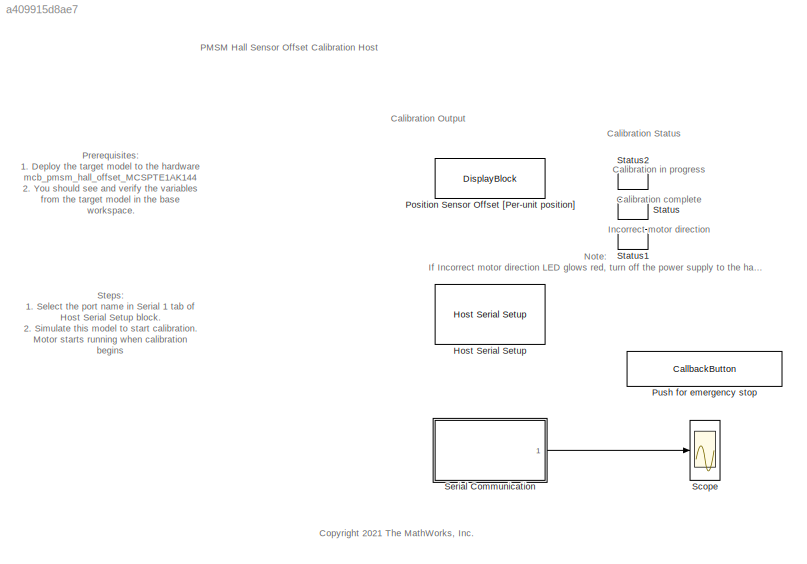
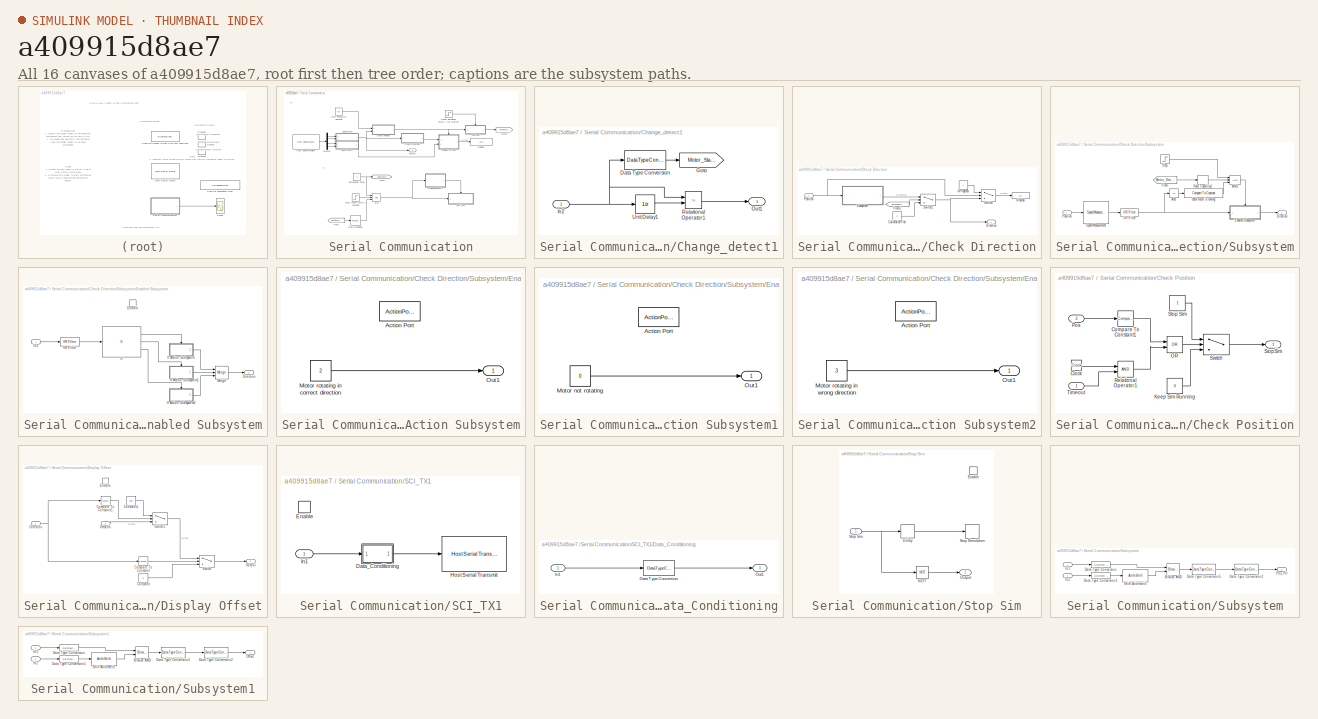
[diagram: thumbnail index - all 16 canvases of the model, root first then tree order]
MODEL slx_a409915d8ae7
KIND model
CONFIG AbsTol = auto
CONFIG EnableMultiTasking = on
CONFIG FixedStep = auto
CONFIG MaxStep = auto
CONFIG MinStep = auto
CONFIG RelTol = 1e-3
CONFIG SampleTimeConstraint = Unconstrained
CONFIG SolverName = FixedStepDiscrete
CONFIG StartFcn = set_param([bdroot '/Serial Communication/Emergency Stop'], 'Value', '1');
CONFIG StartTime = 0.0
CONFIG StopTime = inf
BLOCK [Reference] Host Serial Setup  REF=mcbhostblockslib/Host Serial Setup
  Ports = []
  Priority = -99
  SourceBlock = mcbhostblockslib/Host Serial Setup
  SourceProductBaseCode = MT
  SourceType = Host Serial Setup
BLOCK [DisplayBlock] Position Sensor Offset [Per-unit position]
  Format = short
  LabelPosition = Hide
  Transparency = 1
BLOCK [CallbackButton] Push for emergency stop
  ButtonText = Emergency Motor Stop
  ClickFcn = set_param([bdroot '/Serial Communication/Emergency Stop'], 'Value', '0');
BLOCK [Scope] Scope
  Floating = off
  NumInputPorts = 1
  Ports = [1]
  ScopeSpecificationString = Simulink.scopes.TimeScopeBlockCfg('CurrentConfiguration', extmgr.ConfigurationSet(extmgr.Configuration('Core','General UI',true),extmgr.Configuration('Core','Source UI',true),extmgr.Configuration('Sources','WiredSimulink',true),extmgr.Configuration('Visuals','Time Domain',true,'InputProcessing','FrameProcessing','SerializedDisplays',{struct('MinYLimReal','-1.22916','MaxYLimReal','1.06241','YLabelR...<+1643ch>
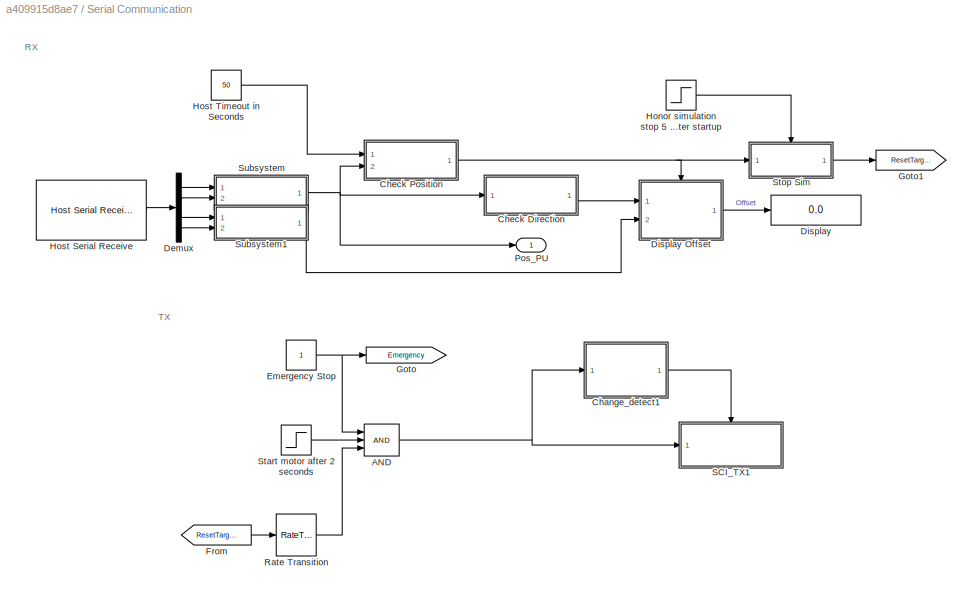
BLOCK [SubSystem] Serial Communication
  Ports = [0, 1]
  RequestExecContextInheritance = off
BLOCK [Logic] Serial Communication/AND
  AllPortsSameDT = off
  IconShape = distinctive
  Inputs = 3
  OutDataTypeStr = boolean
  Ports = [3, 1]
BLOCK [SubSystem] Serial Communication/Change_detect1
  Ports = [1, 1]
  RequestExecContextInheritance = off
BLOCK [DataTypeConversion] Serial Communication/Change_detect1/Data Type Conversion
  OutDataTypeStr = boolean
  RndMeth = Simplest
  SaturateOnIntegerOverflow = off
BLOCK [Goto] Serial Communication/Change_detect1/Goto
  GotoTag = Motor_State
  TagVisibility = global
BLOCK [Inport] Serial Communication/Change_detect1/In2
BLOCK [Outport] Serial Communication/Change_detect1/Out1
  VectorParamsAs1DForOutWhenUnconnected = off
BLOCK [RelationalOperator] Serial Communication/Change_detect1/Relational Operator1
  InputSameDT = off
  Operator = ~=
  OutDataTypeStr = boolean
  Ports = [2, 1]
BLOCK [UnitDelay] Serial Communication/Change_detect1/Unit Delay1
  HasFrameUpgradeWarning = on
  SampleTime = -1
BLOCK [SubSystem] Serial Communication/Check Direction
  Ports = [1, 1]
  RequestExecContextInheritance = off
BLOCK [Constant] Serial Communication/Check Direction/Calibration Fail
  OutDataTypeStr = uint16
  Value = 3
BLOCK [Outport] Serial Communication/Check Direction/Direction
BLOCK [Display] Serial Communication/Check Direction/Display
  Decimation = 1
  Ports = [1]
BLOCK [From] Serial Communication/Check Direction/From1
  GotoTag = Emergency
  TagVisibility = global
BLOCK [Constant] Serial Communication/Check Direction/InProgress
  OutDataTypeStr = uint16
BLOCK [Inport] Serial Communication/Check Direction/Position
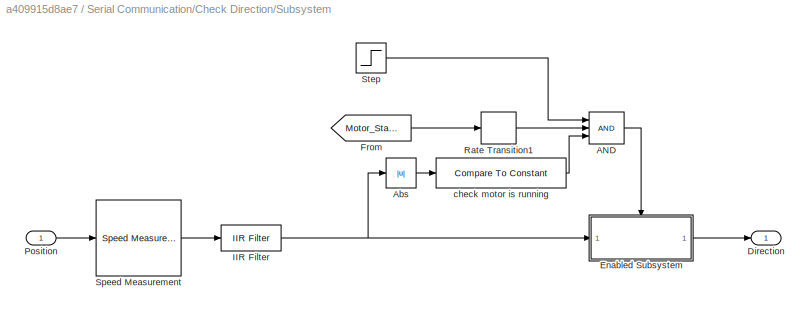
BLOCK [SubSystem] Serial Communication/Check Direction/Subsystem
  Ports = [1, 1]
  RequestExecContextInheritance = off
BLOCK [Logic] Serial Communication/Check Direction/Subsystem/AND
  AllPortsSameDT = off
  IconShape = distinctive
  Inputs = 3
  OutDataTypeStr = boolean
  Ports = [3, 1]
BLOCK [Abs] Serial Communication/Check Direction/Subsystem/Abs
  SaturateOnIntegerOverflow = off
BLOCK [Outport] Serial Communication/Check Direction/Subsystem/Direction
BLOCK [SubSystem] Serial Communication/Check Direction/Subsystem/Enabled Subsystem
  Ports = [1, 1, 1]
  RequestExecContextInheritance = off
  TreatAsAtomicUnit = on
BLOCK [Outport] Serial Communication/Check Direction/Subsystem/Enabled Subsystem/Direction
BLOCK [EnablePort] Serial Communication/Check Direction/Subsystem/Enabled Subsystem/Enable
  Ports = []
BLOCK [Reference] Serial Communication/Check Direction/Subsystem/Enabled Subsystem/IIR Filter  REF=mcbcontrolslib/IIR Filter
  Ports = [1, 1]
  SourceBlock = mcbcontrolslib/IIR Filter
  SourceProductBaseCode = MT
  SourceType = IIR Filter
BLOCK [If] Serial Communication/Check Direction/Subsystem/Enabled Subsystem/If
  ElseIfExpressions = u1 > single(-0.1)
  IfExpression = u1 > single(0.1)
  Ports = [1, 3]
BLOCK [SubSystem] Serial Communication/Check Direction/Subsystem/Enabled Subsystem/If Action Subsystem
  Ports = [0, 1, 0, 0, 0, 0, 0, 1]
  RequestExecContextInheritance = off
  TreatAsAtomicUnit = on
BLOCK [ActionPort] Serial Communication/Check Direction/Subsystem/Enabled Subsystem/If Action Subsystem/Action Port
  ActionPortLabel = if(u1 > single(0.1))
BLOCK [Constant] Serial Communication/Check Direction/Subsystem/Enabled Subsystem/If Action Subsystem/Motor rotating in correct direction
  OutDataTypeStr = uint16
  Value = 2
BLOCK [Outport] Serial Communication/Check Direction/Subsystem/Enabled Subsystem/If Action Subsystem/Out1
BLOCK [SubSystem] Serial Communication/Check Direction/Subsystem/Enabled Subsystem/If Action Subsystem1
  Ports = [0, 1, 0, 0, 0, 0, 0, 1]
  RequestExecContextInheritance = off
  TreatAsAtomicUnit = on
BLOCK [ActionPort] Serial Communication/Check Direction/Subsystem/Enabled Subsystem/If Action Subsystem1/Action Port
  ActionPortLabel = elseif(u1 > single(-0.1))
BLOCK [Constant] Serial Communication/Check Direction/Subsystem/Enabled Subsystem/If Action Subsystem1/Motor not rotating
  OutDataTypeStr = uint16
  Value = 0
BLOCK [Outport] Serial Communication/Check Direction/Subsystem/Enabled Subsystem/If Action Subsystem1/Out1
BLOCK [SubSystem] Serial Communication/Check Direction/Subsystem/Enabled Subsystem/If Action Subsystem2
  Ports = [0, 1, 0, 0, 0, 0, 0, 1]
  RequestExecContextInheritance = off
  TreatAsAtomicUnit = on
BLOCK [ActionPort] Serial Communication/Check Direction/Subsystem/Enabled Subsystem/If Action Subsystem2/Action Port
  ActionPortLabel = else
BLOCK [Constant] Serial Communication/Check Direction/Subsystem/Enabled Subsystem/If Action Subsystem2/Motor rotating in wrong direction
  OutDataTypeStr = uint16
  Value = 3
BLOCK [Outport] Serial Communication/Check Direction/Subsystem/Enabled Subsystem/If Action Subsystem2/Out1
BLOCK [Inport] Serial Communication/Check Direction/Subsystem/Enabled Subsystem/In1
BLOCK [Merge] Serial Communication/Check Direction/Subsystem/Enabled Subsystem/Merge
  Inputs = 3
  Ports = [3, 1]
BLOCK [From] Serial Communication/Check Direction/Subsystem/From
  GotoTag = Motor_State
  TagVisibility = global
BLOCK [Reference] Serial Communication/Check Direction/Subsystem/IIR Filter  REF=mcbcontrolslib/IIR Filter
  Ports = [1, 1]
  SourceBlock = mcbcontrolslib/IIR Filter
  SourceProductBaseCode = MT
  SourceType = IIR Filter
BLOCK [Inport] Serial Communication/Check Direction/Subsystem/Position
BLOCK [RateTransition] Serial Communication/Check Direction/Subsystem/Rate Transition1
BLOCK [Reference] Serial Communication/Check Direction/Subsystem/Speed Measurement  REF=mcbpositiondecoderlib/Speed Measurement
  Ports = [1, 1]
  SourceBlock = mcbpositiondecoderlib/Speed Measurement
  SourceProductBaseCode = MT
  SourceType = Speed Measurement
BLOCK [Step] Serial Communication/Check Direction/Subsystem/Step
  SampleTime = Ts_uart
  Time = 5
BLOCK [Reference] Serial Communication/Check Direction/Subsystem/check motor is running  REF=simulink/Logic and Bit
Operations/Compare
To Constant
  Ports = [1, 1]
  SourceBlock = simulink/Logic and Bit\nOperations/Compare\nTo Constant
  SourceProductBaseCode = SL
  SourceType = Compare To Constant
BLOCK [Switch] Serial Communication/Check Direction/Switch
  Criteria = u2 > Threshold
  InputSameDT = off
  SaturateOnIntegerOverflow = off
  Threshold = -0.1
BLOCK [Switch] Serial Communication/Check Direction/Switch1
  Criteria = u2 > Threshold
  InputSameDT = off
  SaturateOnIntegerOverflow = off
BLOCK [SubSystem] Serial Communication/Check Position
  Ports = [2, 1]
  RequestExecContextInheritance = off
BLOCK [Clock] Serial Communication/Check Position/Clock
BLOCK [Reference] Serial Communication/Check Position/Compare To Constant1  REF=simulink/Logic and Bit
Operations/Compare
To Constant
  Ports = [1, 1]
  SourceBlock = simulink/Logic and Bit\nOperations/Compare\nTo Constant
  SourceProductBaseCode = SL
  SourceType = Compare To Constant
BLOCK [Constant] Serial Communication/Check Position/Keep Sim Running
  OutDataTypeStr = Inherit: Inherit via back propagation
  Value = 0
BLOCK [Logic] Serial Communication/Check Position/OR
  AllPortsSameDT = off
  IconShape = distinctive
  Operator = OR
  OutDataTypeStr = boolean
  Ports = [2, 1]
BLOCK [Inport] Serial Communication/Check Position/Pos
  Port = 2
BLOCK [RelationalOperator] Serial Communication/Check Position/Relational Operator1
  InputSameDT = off
  OutDataTypeStr = boolean
  Ports = [2, 1]
  RndMeth = Simplest
BLOCK [Constant] Serial Communication/Check Position/Stop Sim
  OutDataTypeStr = Inherit: Inherit via back propagation
BLOCK [Outport] Serial Communication/Check Position/StopSim
BLOCK [Switch] Serial Communication/Check Position/Switch
  Criteria = u2 > Threshold
  InputSameDT = off
  SaturateOnIntegerOverflow = off
  Threshold = 0.5
BLOCK [Inport] Serial Communication/Check Position/Timeout
BLOCK [Demux] Serial Communication/Demux
  Ports = [1, 4]
BLOCK [Display] Serial Communication/Display
  Decimation = 1
  Ports = [1]
BLOCK [SubSystem] Serial Communication/Display Offset
  Ports = [2, 1, 1]
  RequestExecContextInheritance = off
BLOCK [Reference] Serial Communication/Display Offset/Compare To Constant  REF=simulink/Logic and Bit
Operations/Compare
To Constant
  Ports = [1, 1]
  SourceBlock = simulink/Logic and Bit\nOperations/Compare\nTo Constant
  SourceProductBaseCode = SL
  SourceType = Compare To Constant
BLOCK [Reference] Serial Communication/Display Offset/Compare To Constant1  REF=simulink/Logic and Bit
Operations/Compare
To Constant
  Ports = [1, 1]
  SourceBlock = simulink/Logic and Bit\nOperations/Compare\nTo Constant
  SourceProductBaseCode = SL
  SourceType = Compare To Constant
BLOCK [Constant] Serial Communication/Display Offset/Constant
  OutDataTypeStr = Inherit: Inherit via back propagation
  Value = 0
BLOCK [Constant] Serial Communication/Display Offset/Constant1
  OutDataTypeStr = Inherit: Inherit via back propagation
  Value = nan
BLOCK [Inport] Serial Communication/Display Offset/Direction
BLOCK [EnablePort] Serial Communication/Display Offset/Enable
  Ports = []
BLOCK [Inport] Serial Communication/Display Offset/OffsetIn
  Port = 2
BLOCK [Outport] Serial Communication/Display Offset/Output
BLOCK [Switch] Serial Communication/Display Offset/Switch
  Criteria = u2 > Threshold
  InputSameDT = off
  SaturateOnIntegerOverflow = off
BLOCK [Switch] Serial Communication/Display Offset/Switch1
  Criteria = u2 > Threshold
  InputSameDT = off
  SaturateOnIntegerOverflow = off
BLOCK [Constant] Serial Communication/Emergency Stop
  OutDataTypeStr = Inherit: Inherit via back propagation
BLOCK [From] Serial Communication/From
  GotoTag = ResetTarget
BLOCK [Goto] Serial Communication/Goto
  GotoTag = Emergency
  TagVisibility = global
BLOCK [Goto] Serial Communication/Goto1
  GotoTag = ResetTarget
BLOCK [Step] Serial Communication/Honor simulation stop 5 seconds after startup
  SampleTime = Ts_uart
  Time = 5
BLOCK [Reference] Serial Communication/Host Serial Receive  REF=mcbhostblockslib/Host Serial Receive
  Ports = [0, 1]
  SourceBlock = mcbhostblockslib/Host Serial Receive
  SourceProductBaseCode = MT
  SourceType = Host Serial Receive
BLOCK [Constant] Serial Communication/Host Timeout in Seconds
  OutDataTypeStr = Inherit: Inherit via back propagation
  Value = 50
BLOCK [Outport] Serial Communication/Pos_PU
BLOCK [RateTransition] Serial Communication/Rate Transition
BLOCK [SubSystem] Serial Communication/SCI_TX1
  Ports = [1, 0, 1]
  RequestExecContextInheritance = off
  TreatAsAtomicUnit = on
BLOCK [SubSystem] Serial Communication/SCI_TX1/Data_Conditioning
  Ports = [1, 1]
  RequestExecContextInheritance = off
BLOCK [DataTypeConversion] Serial Communication/SCI_TX1/Data_Conditioning/Data Type Conversion
  OutDataTypeStr = uint8
  RndMeth = Simplest
  SaturateOnIntegerOverflow = off
BLOCK [Inport] Serial Communication/SCI_TX1/Data_Conditioning/In1
BLOCK [Outport] Serial Communication/SCI_TX1/Data_Conditioning/Out1
  VectorParamsAs1DForOutWhenUnconnected = off
BLOCK [EnablePort] Serial Communication/SCI_TX1/Enable
  Ports = []
BLOCK [Reference] Serial Communication/SCI_TX1/Host Serial Transmit  REF=mcbhostblockslib/Host Serial Transmit
  Ports = [1]
  SourceBlock = mcbhostblockslib/Host Serial Transmit
  SourceProductBaseCode = MT
  SourceType = Host Serial Transmit
BLOCK [Inport] Serial Communication/SCI_TX1/In1
BLOCK [Step] Serial Communication/Start motor after 2 seconds
  OutDataTypeStr = single
  SampleTime = Ts_uart
  Time = 2
BLOCK [SubSystem] Serial Communication/Stop Sim
  Ports = [1, 1, 1]
  RequestExecContextInheritance = off
BLOCK [Delay] Serial Communication/Stop Sim/Delay
  DelayLength = 100
  InputPortMap = u0
  Ports = [1, 1]
BLOCK [EnablePort] Serial Communication/Stop Sim/Enable
  Ports = []
BLOCK [Logic] Serial Communication/Stop Sim/NOT
  AllPortsSameDT = off
  IconShape = distinctive
  Operator = NOT
  OutDataTypeStr = boolean
  Ports = [1, 1]
BLOCK [Outport] Serial Communication/Stop Sim/Output
  InitialOutput = 1
BLOCK [Inport] Serial Communication/Stop Sim/Stop Sim
BLOCK [Stop] Serial Communication/Stop Sim/Stop Simulation
BLOCK [SubSystem] Serial Communication/Subsystem
  NameLocation = top
  Ports = [2, 1]
  RequestExecContextInheritance = off
BLOCK [Reference] Serial Communication/Subsystem/Bitwise AND  REF=simulink/Logic and Bit
Operations/Bitwise
Operator
  Ports = [2, 1]
  SourceBlock = simulink/Logic and Bit\nOperations/Bitwise\nOperator
  SourceProductBaseCode = SL
  SourceType = Bitwise Operator
BLOCK [DataTypeConversion] Serial Communication/Subsystem/Data Type Conversion
  OutDataTypeStr = uint16
  RndMeth = Simplest
  SaturateOnIntegerOverflow = off
BLOCK [DataTypeConversion] Serial Communication/Subsystem/Data Type Conversion1
  OutDataTypeStr = uint16
  RndMeth = Simplest
  SaturateOnIntegerOverflow = off
BLOCK [DataTypeConversion] Serial Communication/Subsystem/Data Type Conversion2
  OutDataTypeStr = single
  RndMeth = Simplest
  SaturateOnIntegerOverflow = off
BLOCK [DataTypeConversion] Serial Communication/Subsystem/Data Type Conversion5
  ConvertRealWorld = Stored Integer (SI)
  OutDataTypeStr = fixdt(1,16,12)
  RndMeth = Simplest
  SaturateOnIntegerOverflow = off
BLOCK [Inport] Serial Communication/Subsystem/In1
BLOCK [Inport] Serial Communication/Subsystem/In2
  Port = 2
BLOCK [Outport] Serial Communication/Subsystem/Pos_PU
BLOCK [ArithShift] Serial Communication/Subsystem/Shift Arithmetic
  BitShiftDirection = Left
  BitShiftNumber = 8
  InputPortMap = u0
  Ports = [1, 1]
BLOCK [SubSystem] Serial Communication/Subsystem1
  Ports = [2, 1]
  RequestExecContextInheritance = off
BLOCK [Reference] Serial Communication/Subsystem1/Bitwise AND  REF=simulink/Logic and Bit
Operations/Bitwise
Operator
  Ports = [2, 1]
  SourceBlock = simulink/Logic and Bit\nOperations/Bitwise\nOperator
  SourceProductBaseCode = SL
  SourceType = Bitwise Operator
BLOCK [DataTypeConversion] Serial Communication/Subsystem1/Data Type Conversion
  OutDataTypeStr = uint16
  RndMeth = Simplest
  SaturateOnIntegerOverflow = off
BLOCK [DataTypeConversion] Serial Communication/Subsystem1/Data Type Conversion1
  OutDataTypeStr = uint16
  RndMeth = Simplest
  SaturateOnIntegerOverflow = off
BLOCK [DataTypeConversion] Serial Communication/Subsystem1/Data Type Conversion2
  OutDataTypeStr = single
  RndMeth = Simplest
  SaturateOnIntegerOverflow = off
BLOCK [DataTypeConversion] Serial Communication/Subsystem1/Data Type Conversion5
  ConvertRealWorld = Stored Integer (SI)
  OutDataTypeStr = fixdt(1,16,12)
  RndMeth = Simplest
  SaturateOnIntegerOverflow = off
BLOCK [Inport] Serial Communication/Subsystem1/In1
BLOCK [Inport] Serial Communication/Subsystem1/In2
  Port = 2
BLOCK [Outport] Serial Communication/Subsystem1/Offset
BLOCK [ArithShift] Serial Communication/Subsystem1/Shift Arithmetic
  BitShiftDirection = Left
  BitShiftNumber = 8
  InputPortMap = u0
  Ports = [1, 1]
BLOCK [LampBlock] Status
  LabelPosition = Hide
BLOCK [LampBlock] Status1
  LabelPosition = Hide
BLOCK [LampBlock] Status2
  LabelPosition = Hide
ANNOTATION (root): Calibration complete
ANNOTATION (root): Calibration in progress
ANNOTATION (root): Incorrect m otor direction
ANNOTATION (root): Note: If Incorrect motor direction LED glows red , turn off the power supply to the hardware setup, interchange any two motor phase connections, and simulate the host model again.
ANNOTATION (root): Prerequisites: 1. Deploy the target model to the hardware mcb_pmsm_hall_offset_MCSPTE1AK144 2. You should see and verify the variables from the target model in the base workspace.
ANNOTATION (root): Steps: 1. Select the port name in Serial 1 tab of Host Serial Setup block. 2. Simulate this model to start calibration. Motor starts running when calibration begins 3. After calibration completes, simulation ends and motor stops automatically. 4. Push the Emergency Motor Stop button to stop the motor during emergency.
ANNOTATION (root): Calibration Output
ANNOTATION (root): Calibration Status
ANNOTATION (root): PMSM Hall Sensor Offset Calibration Host
ANNOTATION (root): <copyright redacted>
ANNOTATION Serial Communication: RX
ANNOTATION Serial Communication: TX
NET Serial Communication/AND:1 -> Serial Communication/Change_detect1:1, Serial Communication/SCI_TX1:1
LINE Serial Communication/Change_detect1/Data Type Conversion:1 -> Serial Communication/Change_detect1/Goto:1
NET Serial Communication/Change_detect1/In2:1 -> Serial Communication/Change_detect1/Data Type Conversion:1, Serial Communication/Change_detect1/Relational Operator1:1, Serial Communication/Change_detect1/Unit Delay1:1
LINE Serial Communication/Change_detect1/Relational Operator1:1 -> Serial Communication/Change_detect1/Out1:1
LINE Serial Communication/Change_detect1/Unit Delay1:1 -> Serial Communication/Change_detect1/Relational Operator1:2
LINE Serial Communication/Change_detect1:1 -> Serial Communication/SCI_TX1:enable
LINE Serial Communication/Check Direction/Calibration Fail:1 -> Serial Communication/Check Direction/Switch1:3
LINE Serial Communication/Check Direction/From1:1 -> Serial Communication/Check Direction/Switch1:2
LINE Serial Communication/Check Direction/InProgress:1 -> Serial Communication/Check Direction/Switch:1
NET Serial Communication/Check Direction/Position:1 -> Serial Communication/Check Direction/Subsystem:1, Serial Communication/Check Direction/Switch:2
LINE Serial Communication/Check Direction/Subsystem/AND:1 -> Serial Communication/Check Direction/Subsystem/Enabled Subsystem:enable
LINE Serial Communication/Check Direction/Subsystem/Abs:1 -> Serial Communication/Check Direction/Subsystem/check motor is running:1
LINE Serial Communication/Check Direction/Subsystem/Enabled Subsystem/IIR Filter:1 -> Serial Communication/Check Direction/Subsystem/Enabled Subsystem/If:1
LINE Serial Communication/Check Direction/Subsystem/Enabled Subsystem/If Action Subsystem/Motor rotating in correct direction:1 -> Serial Communication/Check Direction/Subsystem/Enabled Subsystem/If Action Subsystem/Out1:1
LINE Serial Communication/Check Direction/Subsystem/Enabled Subsystem/If Action Subsystem1/Motor not rotating:1 -> Serial Communication/Check Direction/Subsystem/Enabled Subsystem/If Action Subsystem1/Out1:1
LINE Serial Communication/Check Direction/Subsystem/Enabled Subsystem/If Action Subsystem1:1 -> Serial Communication/Check Direction/Subsystem/Enabled Subsystem/Merge:2
LINE Serial Communication/Check Direction/Subsystem/Enabled Subsystem/If Action Subsystem2/Motor rotating in wrong direction:1 -> Serial Communication/Check Direction/Subsystem/Enabled Subsystem/If Action Subsystem2/Out1:1
LINE Serial Communication/Check Direction/Subsystem/Enabled Subsystem/If Action Subsystem2:1 -> Serial Communication/Check Direction/Subsystem/Enabled Subsystem/Merge:3
LINE Serial Communication/Check Direction/Subsystem/Enabled Subsystem/If Action Subsystem:1 -> Serial Communication/Check Direction/Subsystem/Enabled Subsystem/Merge:1
LINE Serial Communication/Check Direction/Subsystem/Enabled Subsystem/If:1 -> Serial Communication/Check Direction/Subsystem/Enabled Subsystem/If Action Subsystem:ifaction
LINE Serial Communication/Check Direction/Subsystem/Enabled Subsystem/If:2 -> Serial Communication/Check Direction/Subsystem/Enabled Subsystem/If Action Subsystem1:ifaction
LINE Serial Communication/Check Direction/Subsystem/Enabled Subsystem/If:3 -> Serial Communication/Check Direction/Subsystem/Enabled Subsystem/If Action Subsystem2:ifaction
LINE Serial Communication/Check Direction/Subsystem/Enabled Subsystem/In1:1 -> Serial Communication/Check Direction/Subsystem/Enabled Subsystem/IIR Filter:1
LINE Serial Communication/Check Direction/Subsystem/Enabled Subsystem/Merge:1 -> Serial Communication/Check Direction/Subsystem/Enabled Subsystem/Direction:1
LINE Serial Communication/Check Direction/Subsystem/Enabled Subsystem:1 -> Serial Communication/Check Direction/Subsystem/Direction:1
LINE Serial Communication/Check Direction/Subsystem/From:1 -> Serial Communication/Check Direction/Subsystem/Rate Transition1:1
NET Serial Communication/Check Direction/Subsystem/IIR Filter:1 -> Serial Communication/Check Direction/Subsystem/Abs:1, Serial Communication/Check Direction/Subsystem/Enabled Subsystem:1
LINE Serial Communication/Check Direction/Subsystem/Position:1 -> Serial Communication/Check Direction/Subsystem/Speed Measurement:1
LINE Serial Communication/Check Direction/Subsystem/Rate Transition1:1 -> Serial Communication/Check Direction/Subsystem/AND:2
LINE Serial Communication/Check Direction/Subsystem/Speed Measurement:1 -> Serial Communication/Check Direction/Subsystem/IIR Filter:1
LINE Serial Communication/Check Direction/Subsystem/Step:1 -> Serial Communication/Check Direction/Subsystem/AND:1
LINE Serial Communication/Check Direction/Subsystem/check motor is running:1 -> Serial Communication/Check Direction/Subsystem/AND:3
LINE Serial Communication/Check Direction/Subsystem:1 -> Serial Communication/Check Direction/Switch1:1
NET Serial Communication/Check Direction/Switch1:1 -> Serial Communication/Check Direction/Direction:1, Serial Communication/Check Direction/Switch:3
LINE Serial Communication/Check Direction/Switch:1 -> Serial Communication/Check Direction/Display:1
LINE Serial Communication/Check Direction:1 -> Serial Communication/Display Offset:1
LINE Serial Communication/Check Position/Clock:1 -> Serial Communication/Check Position/Relational Operator1:1
LINE Serial Communication/Check Position/Compare To Constant1:1 -> Serial Communication/Check Position/OR:1
LINE Serial Communication/Check Position/Keep Sim Running:1 -> Serial Communication/Check Position/Switch:3
LINE Serial Communication/Check Position/OR:1 -> Serial Communication/Check Position/Switch:2
LINE Serial Communication/Check Position/Pos:1 -> Serial Communication/Check Position/Compare To Constant1:1
LINE Serial Communication/Check Position/Relational Operator1:1 -> Serial Communication/Check Position/OR:2
LINE Serial Communication/Check Position/Stop Sim:1 -> Serial Communication/Check Position/Switch:1
LINE Serial Communication/Check Position/Switch:1 -> Serial Communication/Check Position/StopSim:1
LINE Serial Communication/Check Position/Timeout:1 -> Serial Communication/Check Position/Relational Operator1:2
NET Serial Communication/Check Position:1 -> Serial Communication/Display Offset:enable, Serial Communication/Stop Sim:1
LINE Serial Communication/Demux:1 -> Serial Communication/Subsystem:1
LINE Serial Communication/Demux:2 -> Serial Communication/Subsystem:2
LINE Serial Communication/Demux:3 -> Serial Communication/Subsystem1:1
LINE Serial Communication/Demux:4 -> Serial Communication/Subsystem1:2
LINE Serial Communication/Display Offset/Compare To Constant1:1 -> Serial Communication/Display Offset/Switch1:2
LINE Serial Communication/Display Offset/Compare To Constant:1 -> Serial Communication/Display Offset/Switch:2
LINE Serial Communication/Display Offset/Constant1:1 -> Serial Communication/Display Offset/Switch1:1
LINE Serial Communication/Display Offset/Constant:1 -> Serial Communication/Display Offset/Switch:3
NET Serial Communication/Display Offset/Direction:1 -> Serial Communication/Display Offset/Compare To Constant1:1, Serial Communication/Display Offset/Compare To Constant:1
LINE Serial Communication/Display Offset/OffsetIn:1 -> Serial Communication/Display Offset/Switch1:3
LINE Serial Communication/Display Offset/Switch1:1 -> Serial Communication/Display Offset/Switch:1
LINE Serial Communication/Display Offset/Switch:1 -> Serial Communication/Display Offset/Output:1
LINE Serial Communication/Display Offset:1 -> Serial Communication/Display:1
NET Serial Communication/Emergency Stop:1 -> Serial Communication/AND:1, Serial Communication/Goto:1
LINE Serial Communication/From:1 -> Serial Communication/Rate Transition:1
LINE Serial Communication/Honor simulation stop 5 seconds after startup:1 -> Serial Communication/Stop Sim:enable
LINE Serial Communication/Host Serial Receive:1 -> Serial Communication/Demux:1
LINE Serial Communication/Host Timeout in Seconds:1 -> Serial Communication/Check Position:1
LINE Serial Communication/Rate Transition:1 -> Serial Communication/AND:3
LINE Serial Communication/SCI_TX1/Data_Conditioning/Data Type Conversion:1 -> Serial Communication/SCI_TX1/Data_Conditioning/Out1:1
LINE Serial Communication/SCI_TX1/Data_Conditioning/In1:1 -> Serial Communication/SCI_TX1/Data_Conditioning/Data Type Conversion:1
LINE Serial Communication/SCI_TX1/Data_Conditioning:1 -> Serial Communication/SCI_TX1/Host Serial Transmit:1
LINE Serial Communication/SCI_TX1/In1:1 -> Serial Communication/SCI_TX1/Data_Conditioning:1
LINE Serial Communication/Start motor after 2 seconds:1 -> Serial Communication/AND:2
LINE Serial Communication/Stop Sim/Delay:1 -> Serial Communication/Stop Sim/Stop Simulation:1
LINE Serial Communication/Stop Sim/NOT:1 -> Serial Communication/Stop Sim/Output:1
NET Serial Communication/Stop Sim/Stop Sim:1 -> Serial Communication/Stop Sim/Delay:1, Serial Communication/Stop Sim/NOT:1
LINE Serial Communication/Stop Sim:1 -> Serial Communication/Goto1:1
LINE Serial Communication/Subsystem/Bitwise AND:1 -> Serial Communication/Subsystem/Data Type Conversion5:1
LINE Serial Communication/Subsystem/Data Type Conversion1:1 -> Serial Communication/Subsystem/Shift Arithmetic:1
LINE Serial Communication/Subsystem/Data Type Conversion2:1 -> Serial Communication/Subsystem/Pos_PU:1
LINE Serial Communication/Subsystem/Data Type Conversion5:1 -> Serial Communication/Subsystem/Data Type Conversion2:1
LINE Serial Communication/Subsystem/Data Type Conversion:1 -> Serial Communication/Subsystem/Bitwise AND:1
LINE Serial Communication/Subsystem/In1:1 -> Serial Communication/Subsystem/Data Type Conversion:1
LINE Serial Communication/Subsystem/In2:1 -> Serial Communication/Subsystem/Data Type Conversion1:1
LINE Serial Communication/Subsystem/Shift Arithmetic:1 -> Serial Communication/Subsystem/Bitwise AND:2
LINE Serial Communication/Subsystem1/Bitwise AND:1 -> Serial Communication/Subsystem1/Data Type Conversion5:1
LINE Serial Communication/Subsystem1/Data Type Conversion1:1 -> Serial Communication/Subsystem1/Shift Arithmetic:1
LINE Serial Communication/Subsystem1/Data Type Conversion2:1 -> Serial Communication/Subsystem1/Offset:1
LINE Serial Communication/Subsystem1/Data Type Conversion5:1 -> Serial Communication/Subsystem1/Data Type Conversion2:1
LINE Serial Communication/Subsystem1/Data Type Conversion:1 -> Serial Communication/Subsystem1/Bitwise AND:1
LINE Serial Communication/Subsystem1/In1:1 -> Serial Communication/Subsystem1/Data Type Conversion:1
LINE Serial Communication/Subsystem1/In2:1 -> Serial Communication/Subsystem1/Data Type Conversion1:1
LINE Serial Communication/Subsystem1/Shift Arithmetic:1 -> Serial Communication/Subsystem1/Bitwise AND:2
LINE Serial Communication/Subsystem1:1 -> Serial Communication/Display Offset:2
NET Serial Communication/Subsystem:1 -> Serial Communication/Check Direction:1, Serial Communication/Check Position:2, Serial Communication/Pos_PU:1
LINE Serial Communication:1 -> Scope:1
note: NET lines group one-source signal fan-out (src -> all destinations, sorted); 1:1 wires keep LINE
